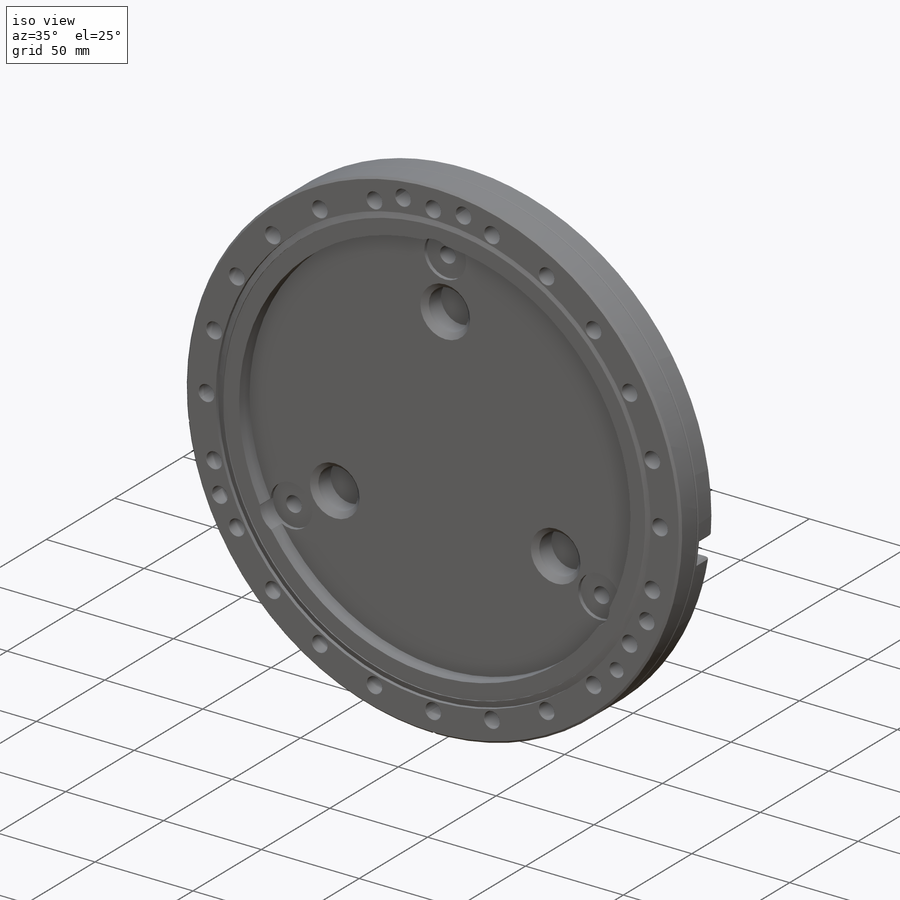
[diagram: iso view]
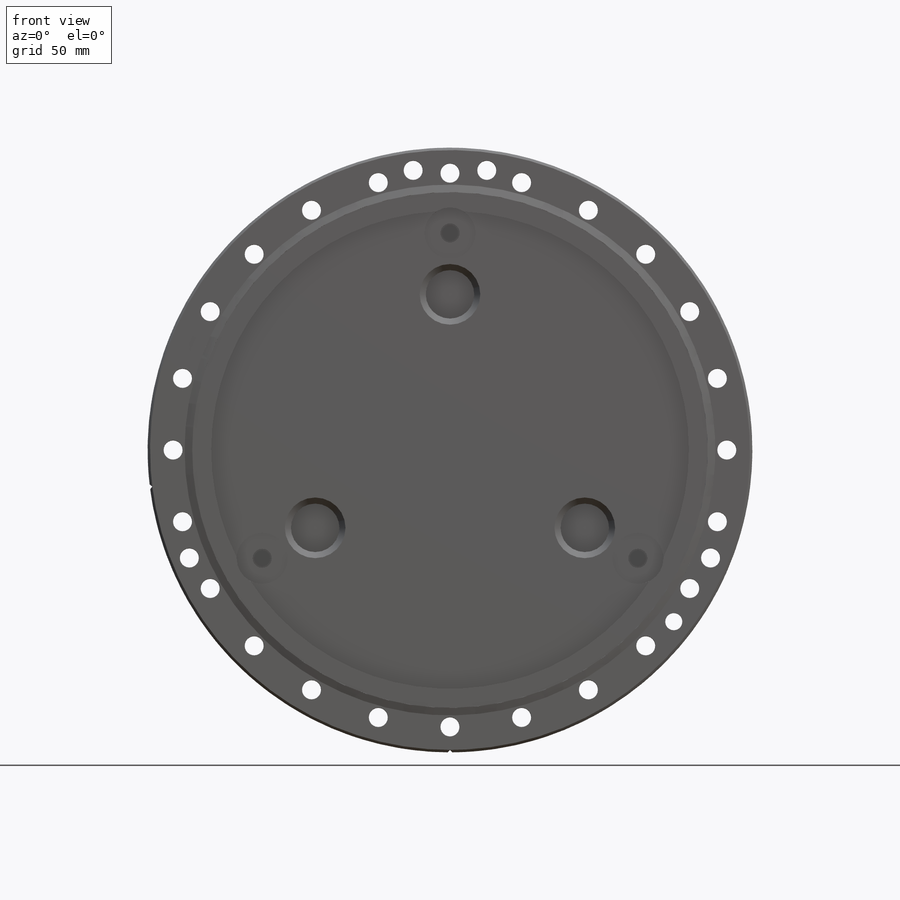
[diagram: front view]
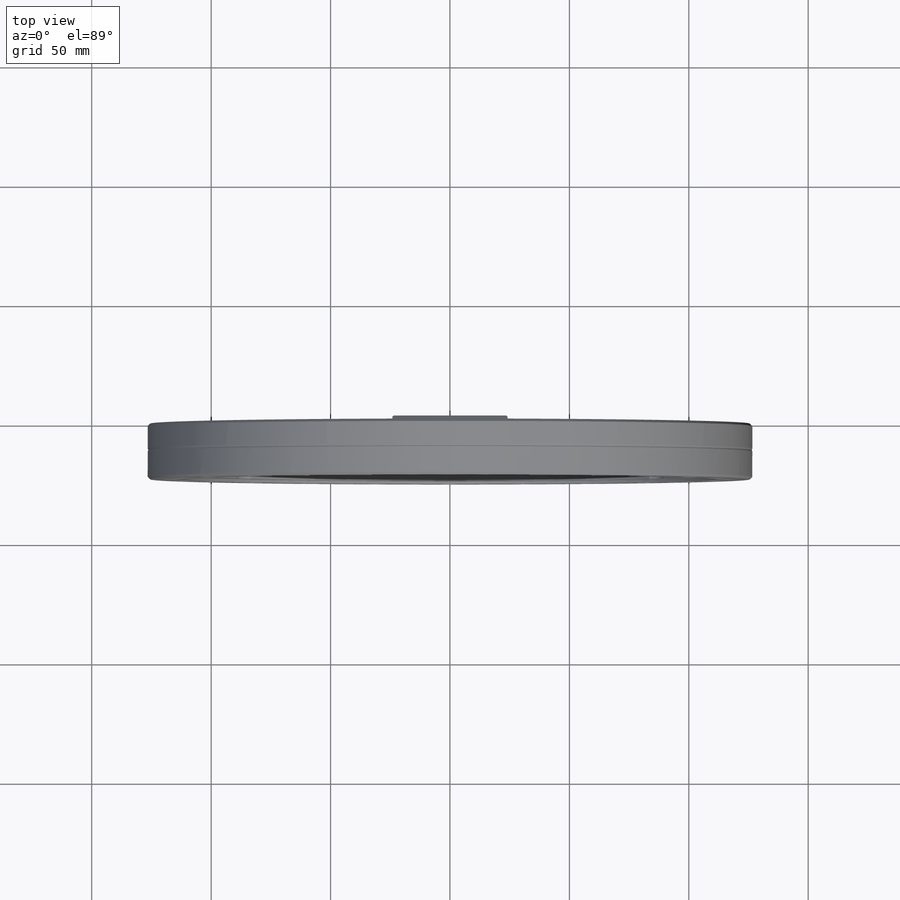
[diagram: top view]
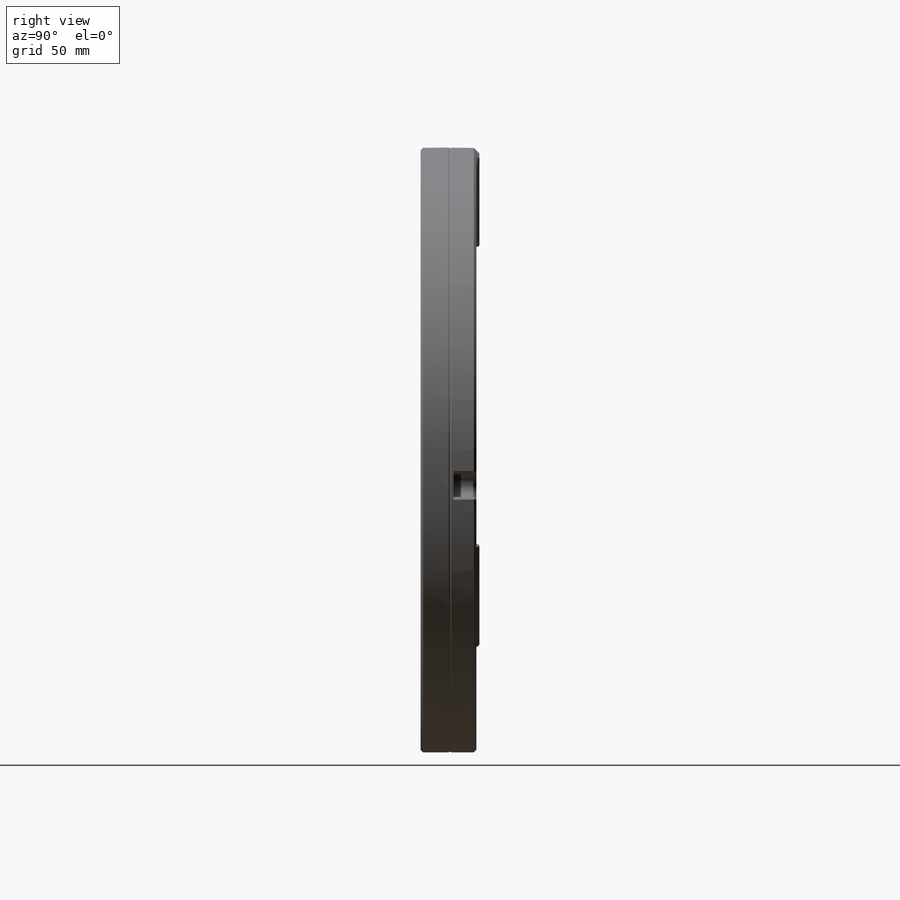
[diagram: right view]
SOLIDWORKS PART (.sldprt)
format: sldprt  version: not decoded by parser v0  size: 1,160,192 bytes
history: native  units: mm
features: sketch x20, cut_extrude x7, chamfer x5, hole x5, plane x4, pattern_circular x4, extrude x2, material x1, revolve x1 + 1 further entry (+11 scaffold rows collapsed; 1 parser-record rows omitted)
feature tree (62):
  scaffold x11  (default folders/planes/origin — collapsed)
  material  "304 SSTL"
  plane  "XY"
  plane  "XZ"
  plane  "YZ"
  "Origin"  ID=-1
  sketch  "Sketch1"  dims[c1.D3=~2.223636mm c1.D4=0.7874mm c1.D1=253.1872mm c1.D2=12.2936mm c2.D3=254.3556mm c2.D5=24.5872mm c2.D6=~5.903019mm c3.D6=20.0deg c3.D7=1.1684mm c3.D8=215.8492mm c3.D9=222.25mm c3.D10=1.8288mm]
  revolve  "Revolve1Nor-cal 1000-00NT"  Angle=360deg
  sketch  "Sketch16"  dims[c1.D1=~18.078465mm c2.D1=45.0deg c2.D2=5.08mm c3.D1=125.5776mm c3.D3=125.5776mm c4.D3=135.0deg c4.D4=5.08mm c5.D4=90.0deg]
  cut_extrude  "KEY Cut-Extrude6"  [1 undecoded]
  sketch  "Sketch30"  dims[c1.D1=25.4mm c1.D2=25.4mm c1.D3=12.7mm c2.D1=~2.561622mm c2.D2=104.14mm]
  cut_extrude  "Reduce Plate, Extrude3"  Depth=1.27mm
  sketch  "Sketch31"  dims[c1.D1=38.1mm c1.D2=38.1mm c1.D6=38.1mm c2.D1=203.2mm c2.D2=2.54mm c3.D1=6.35mm c3.D2=2.54mm c3.D4=2.54mm c4.D2=106.68mm c4.D3=48.26mm c4.D4=101.6mm c4.D5=24.13mm c5.D4=~33.705626mm c5.D2=91.44mm c6.D4=16.51mm c7.D4=~148.971842deg c8.D4=~21.012056mm c9.D4=~132.70939deg c10.D4=15.24mm c11.D4=60.0deg]
  extrude  "Feet, Extrude4"  Depth=1.27mm
  pattern_circular  "Feet, CirPattern3"  Count=3 Angle=120deg
  chamfer  "Flange Chamfer1"  Distance=1.016mm Angle=45deg
  chamfer  "Feet Outer Edge Chamfer3"  Distance=2.286mm Angle=45deg
  chamfer  "Feet, Back, Chamfer5"  Distance=0.508mm Angle=45deg
  pattern_circular  "Key Cut CirPattern4"  Count=2 Angle=83deg
  sketch  "Sketch23"  dims[D1=200.025mm]
  cut_extrude  "Inner Clearance Cut Extrude2"  Depth=7.62mm
  sketch  "Sketch26"  dims[D1=20.32mm D2=65.1764mm]
  cut_extrude  "Clearance GS-13 Stud"  Depth=11.43mm
  chamfer  "Clearance GS-13 Chamfer4"  Distance=2.54mm Angle=45deg
  sketch  "Sketch39"  dims[D1=21.4122mm D2=90.805mm]
  cut_extrude  "Clearance, Washer, Extrude3"  Depth=9.525mm
  pattern_circular  "CirPattern2"  Count=3 Angle=120deg
  hole  "Pin Hole 3/8" Diameter Hole2"  Diameter=9.54278mm Depth=13.462mm
  sketch  "Sketch35"  dims[c1.D1=~114.844423mm c2.D1=7.5deg c2.D2=114.3mm c2.D3=115.9256mm c3.D3=15.0deg c3.D1=~98.890888mm c4.D1=7.5deg]
  sketch  "Sketch34"  dims[hole-wizard template sketch: 40 standard entries collapsed; hole parameters kept: c13.Hole Depth=13.462mm c13.Near C'Sink Dia.=14.224mm c13.D4=~33.297463mm c13.Near C'Sink Angle=90.0deg c14.D5=~14.816244mm c14.Drill Angle=118.0deg]
  sketch  "Sketch36"  dims[c1.D2=3.175mm c1.D1=~9.54278mm c2.D2=6.35mm c2.D3=114.3mm c2.D4=~36.430399mm c3.D3=228.6mm c3.D4=~113.322148mm c4.D3=121.92mm c4.D4=~98.999875mm c5.D4=7.5deg c5.D2=25.4mm]
  cut_extrude  "Pin Slot 3/8" Extrude5"  Depth=9.525mm
  chamfer  "Pin Chamfer2"  Distance=1.27mm Angle=45deg
  hole  "Mounting 5/16-24 Tapped Hole2"  Diameter=7.9375mm Depth=24.5872mm
  sketch  "Sketch41"  dims[c1.D1=115.9256mm c1.D5=236.22mm c2.D1=115.9256mm c3.D1=7.5deg c3.D2=115.9256mm c4.D2=112.5deg c4.D3=115.9256mm c5.D3=112.5deg c5.D4=115.9256mm c6.D4=7.5deg]
  sketch  "Sketch40"  dims[hole-wizard template sketch: 46 standard entries collapsed; hole parameters kept: c15.Thread Major Dia.=7.9375mm c15.Thru Tap Drill Depth=24.5872mm c15.Near C'Sink Dia.=8.1788mm c15.D4=~3.666174mm c15.Near C'Sink Angle=90.0deg c15.Far C'Sink Dia.=8.1788mm c15.D6=~9.919017mm c15.Far C'Sink Angle=90.0deg]
  plane  "Plane1"  Offset=5.08mm
  hole  ".281 THRU Diameter Hole1"  Diameter=7.1374mm Depth=24.5872mm
  sketch  "Sketch44"  dims[c1.D1=~95.528562mm c1.D2=117.5766mm c2.D2=52.5deg c2.D3=~118.116864mm c3.D3=52.5deg]
  sketch  "Sketch43"  dims[hole-wizard template sketch: 59 standard entries collapsed; hole parameters kept: c18.Thru Hole Dia.=7.1374mm c18.Thru Hole Depth=24.5872mm]
  parser-record x1  (decoder bookkeeping rows leaked as tree rows — omitted from the tree; the rows remain in map.json)
  sketch  "Sketch27"
  cut_extrude  "Extrude4 For Dummy config"  [1 undecoded]
  sketch  "Sketch28"
  extrude  "Extrude5 For Dummy config"  [1 undecoded]
  hole  "M8x1.25 Tapped Hole1"  Diameter=6.8mm Depth=11.3538mm
  sketch  "Sketch48"
  sketch  "Sketch47"  dims[hole-wizard template sketch: 28 standard entries collapsed; hole parameters kept: c8.Tap Drill Dia.=6.8mm c8.Tap Drill Depth=11.3538mm c8.Thread Major Dia.=8.0mm c8.Thread Depth=8.8138mm c8.D5=~14.816244mm c8.Drill Angle=180.0deg]
  hole  "5/16-24 Tapped Hole1supplied with part"  Diameter=7.9375mm Depth=24.5872mm
  sketch  "Sketch52"  dims[D1=115.9256mm]
  sketch  "Sketch51"  dims[hole-wizard template sketch: 46 standard entries collapsed; hole parameters kept: c15.Thread Major Dia.=7.9375mm c15.Thru Tap Drill Depth=24.5872mm c15.Near C'Sink Dia.=8.1788mm c15.D4=~3.666174mm c15.Near C'Sink Angle=90.0deg c15.Far C'Sink Dia.=8.1788mm c15.D6=~9.919017mm c15.Far C'Sink Angle=90.0deg]
  pattern_circular  "CirPattern3"  Count=24 Angle=15deg
decode coverage: 38 of 44 modeling features carry decoded parameters; 1 rows unclassified (native names shown)
note: ~ marks probable driven/reference dimensions
note: 3 parameter values undecoded
summary: Diameter pulled from absorbed wizard sketch | no parameter record found for 3 features
note: suppression state not decoded; provenance and decode notes live in map.json
